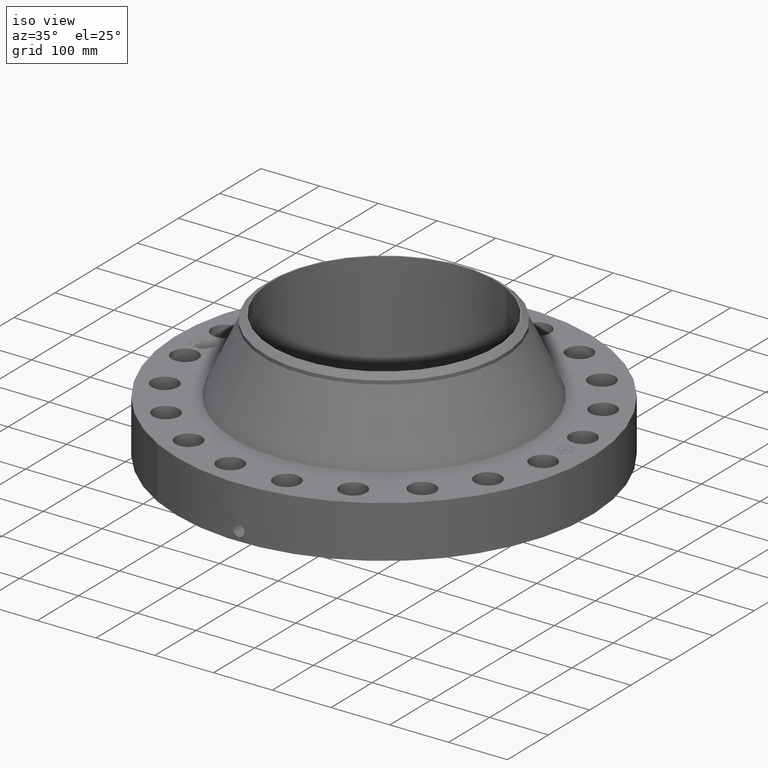
[diagram: clean part render]
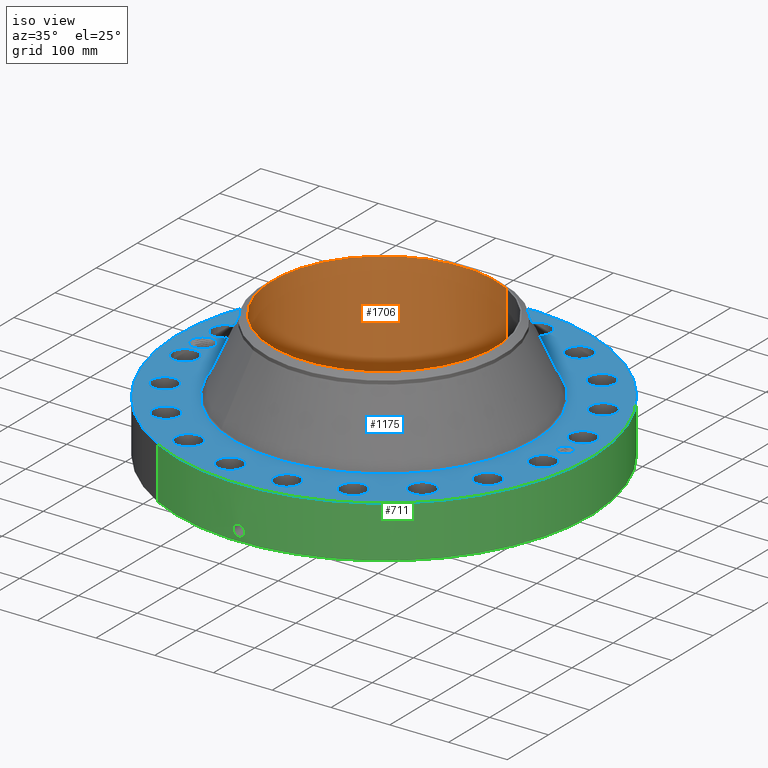
[diagram: same view with three faces highlighted in distinct colors, each labeled with its STEP entity id]
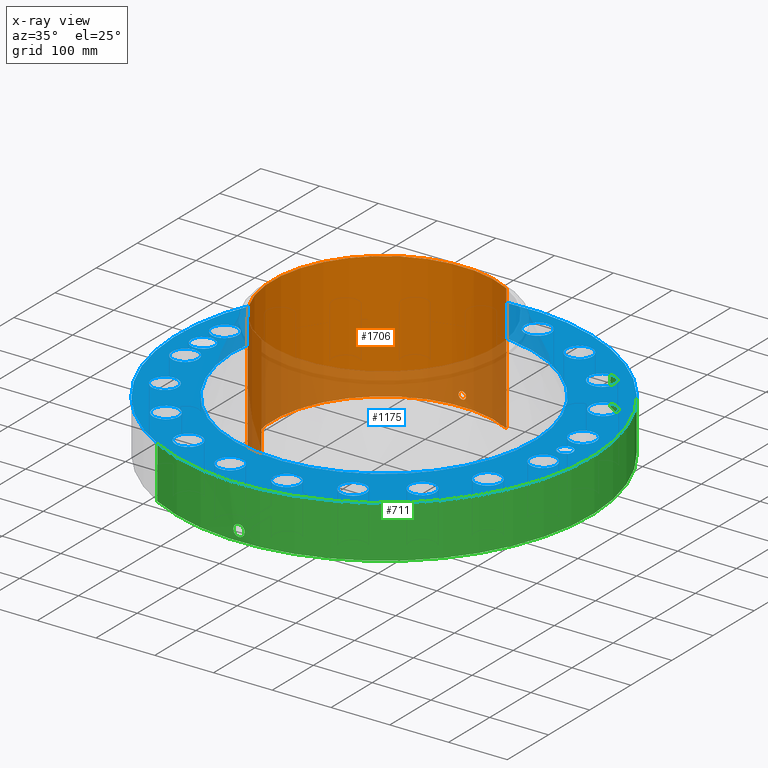
[diagram: x-ray of the same camera — body ghosted, the three highlighted faces saturated]
A machine part, iso view with three faces highlighted in distinct colors.
The next image is the same camera in x-ray (body ghosted, the three faces saturated) — at least one of them is partly hidden behind the body in this view.
Their STEP definitions:

[orange] entity #1706 — the highlighted cylindrical surface (partial cylindrical patch) has radius 190.5 mm, axis along (0, 0, -1).
#263=AXIS2_PLACEMENT_3D('Circle Axis2P3D',#261,#262,$) ;
#1583=AXIS2_PLACEMENT_3D('Cylinder Axis2P3D',#1580,#1581,#1582) ;
#1655=AXIS2_PLACEMENT_3D('Circle Axis2P3D',#1653,#1654,$) ;
#256=CARTESIAN_POINT('Vertex',(3.59569153955,6.5818692142,0.250000000001)) ;
#258=CARTESIAN_POINT('Vertex',(-3.59569153955,-6.5818692142,0.250000000001)) ;
#261=CARTESIAN_POINT('Axis2P3D Location',(0.,0.,0.250000000001)) ;
#1580=CARTESIAN_POINT('Axis2P3D Location',(0.,0.,4.50000000002)) ;
#1589=CARTESIAN_POINT('Vertex',(3.59569153955,6.5818692142,8.75000000003)) ;
#1591=CARTESIAN_POINT('Vertex',(-3.59569153955,-6.5818692142,8.75000000003)) ;
#1594=CARTESIAN_POINT('Line Origine',(3.59569153955,6.5818692142,4.50000000002)) ;
#1599=CARTESIAN_POINT('Line Origine',(-3.59569153955,-6.5818692142,4.50000000002)) ;
#1653=CARTESIAN_POINT('Axis2P3D Location',(0.,0.,8.75000000003)) ;
#1665=CARTESIAN_POINT('Control Point',(0.219395640473,7.4967903501,1.05985638466)) ;
#1666=CARTESIAN_POINT('Control Point',(0.194443383035,7.49752058481,1.10553118553)) ;
#1667=CARTESIAN_POINT('Control Point',(0.157606812849,7.49849471468,1.14470957149)) ;
#1668=CARTESIAN_POINT('Control Point',(0.111111986693,7.49944203012,1.17324142145)) ;
#1669=CARTESIAN_POINT('Control Point',(0.0336784240063,7.50019577271,1.19588184676)) ;
#1670=CARTESIAN_POINT('Control Point',(-0.0446655199426,7.49993536621,1.18805713373)) ;
#1671=CARTESIAN_POINT('Control Point',(-0.0702937087636,7.4997332065,1.18204551062)) ;
#1672=CARTESIAN_POINT('Control Point',(-0.14394789502,7.49883979488,1.15421704476)) ;
#1673=CARTESIAN_POINT('Control Point',(-0.203234184576,7.49738136775,1.09950884539)) ;
#1674=CARTESIAN_POINT('Control Point',(-0.232201664804,7.49642464141,1.05327431005)) ;
#1675=CARTESIAN_POINT('Control Point',(-0.255839148874,7.49563793753,0.975125768919)) ;
#1676=CARTESIAN_POINT('Control Point',(-0.248285193674,7.49588914094,0.895756640073)) ;
#1677=CARTESIAN_POINT('Control Point',(-0.242051359797,7.49609946172,0.869190285342)) ;
#1678=CARTESIAN_POINT('Control Point',(-0.232316958258,7.49641220417,0.843795928905)) ;
#1679=CARTESIAN_POINT('Control Point',(-0.219395640473,7.4967903501,0.820143615352)) ;
#1680=CARTESIAN_POINT('Vertex',(0.219395640473,7.4967903501,1.05985638466)) ;
#1682=CARTESIAN_POINT('Vertex',(-0.219395640473,7.4967903501,0.820143615352)) ;
#1686=CARTESIAN_POINT('Control Point',(-0.219395640473,7.4967903501,0.820143615352)) ;
#1687=CARTESIAN_POINT('Control Point',(-0.194443383052,7.49752058481,0.774468814513)) ;
#1688=CARTESIAN_POINT('Control Point',(-0.157606812898,7.49849471468,0.735290428574)) ;
#1689=CARTESIAN_POINT('Control Point',(-0.111111986624,7.49944203012,0.706758578535)) ;
#1690=CARTESIAN_POINT('Control Point',(-0.0336784239995,7.50019577271,0.684118153255)) ;
#1691=CARTESIAN_POINT('Control Point',(0.0446655198863,7.49993536621,0.691942866271)) ;
#1692=CARTESIAN_POINT('Control Point',(0.0702937088163,7.4997332065,0.697954489405)) ;
#1693=CARTESIAN_POINT('Control Point',(0.143947895041,7.49883979488,0.725782955265)) ;
#1694=CARTESIAN_POINT('Control Point',(0.203234184575,7.49738136775,0.780491154621)) ;
#1695=CARTESIAN_POINT('Control Point',(0.232201664804,7.49642464141,0.826725689962)) ;
#1696=CARTESIAN_POINT('Control Point',(0.255839148855,7.49563793753,0.904874231026)) ;
#1697=CARTESIAN_POINT('Control Point',(0.248285193686,7.49588914094,0.984243359806)) ;
#1698=CARTESIAN_POINT('Control Point',(0.242051359751,7.49609946172,1.01080971479)) ;
#1699=CARTESIAN_POINT('Control Point',(0.232316958227,7.49641220417,1.03620407116)) ;
#1700=CARTESIAN_POINT('Control Point',(0.219395640473,7.4967903501,1.05985638466)) ;
#262=DIRECTION('Axis2P3D Direction',(0.,0.,-0.0393700787402)) ;
#1581=DIRECTION('Axis2P3D Direction',(0.,0.,-0.0393700787402)) ;
#1582=DIRECTION('Axis2P3D XDirection',(-0.0188750212049,-0.0345504945626,0.)) ;
#1595=DIRECTION('Vector Direction',(0.,0.,-0.0393700787402)) ;
#1600=DIRECTION('Vector Direction',(0.,0.,-0.0393700787402)) ;
#1654=DIRECTION('Axis2P3D Direction',(0.,0.,-0.0393700787402)) ;
#1596=VECTOR('Line Direction',#1595,0.0393700787402) ;
#1601=VECTOR('Line Direction',#1600,0.0393700787402) ;
#1659=ORIENTED_EDGE('',*,*,#1657,.F.) ;
#1660=ORIENTED_EDGE('',*,*,#1603,.T.) ;
#1661=ORIENTED_EDGE('',*,*,#265,.T.) ;
#1662=ORIENTED_EDGE('',*,*,#1598,.F.) ;
#1703=ORIENTED_EDGE('',*,*,#1684,.F.) ;
#1704=ORIENTED_EDGE('',*,*,#1701,.F.) ;
#1705=FACE_BOUND('',#1702,.T.) ;
#1706=ADVANCED_FACE('PartBody',(#1663,#1705),#1584,.F.) ;
#1664=B_SPLINE_CURVE_WITH_KNOTS('',5,(#1665,#1666,#1667,#1668,#1669,#1670,#1671,#1672,#1673,#1674,#1675,#1676,#1677,#1678,#1679),.UNSPECIFIED.,.F.,.U.,(6,3,3,3,6),(0.,9.34867665263,14.0227250561,23.3727520164,28.2138860176),.UNSPECIFIED.) ;
#1685=B_SPLINE_CURVE_WITH_KNOTS('',5,(#1686,#1687,#1688,#1689,#1690,#1691,#1692,#1693,#1694,#1695,#1696,#1697,#1698,#1699,#1700),.UNSPECIFIED.,.F.,.U.,(6,3,3,3,6),(0.,9.34867664638,14.0227250449,23.372752005,28.2138859948),.UNSPECIFIED.) ;
#264=CIRCLE('generated circle',#263,7.50000000003) ;
#1656=CIRCLE('generated circle',#1655,7.50000000003) ;
#1584=CYLINDRICAL_SURFACE('generated cylinder',#1583,7.50000000003) ;
#265=EDGE_CURVE('',#259,#257,#264,.T.) ;
#1598=EDGE_CURVE('',#1590,#257,#1597,.T.) ;
#1603=EDGE_CURVE('',#1592,#259,#1602,.T.) ;
#1657=EDGE_CURVE('',#1592,#1590,#1656,.T.) ;
#1684=EDGE_CURVE('',#1681,#1683,#1664,.T.) ;
#1701=EDGE_CURVE('',#1683,#1681,#1685,.T.) ;
#1658=EDGE_LOOP('',(#1659,#1660,#1661,#1662)) ;
#1702=EDGE_LOOP('',(#1703,#1704)) ;
#1663=FACE_OUTER_BOUND('',#1658,.T.) ;
#1597=LINE('Line',#1594,#1596) ;
#1602=LINE('Line',#1599,#1601) ;
#257=VERTEX_POINT('',#256) ;
#259=VERTEX_POINT('',#258) ;
#1590=VERTEX_POINT('',#1589) ;
#1592=VERTEX_POINT('',#1591) ;
#1681=VERTEX_POINT('',#1680) ;
#1683=VERTEX_POINT('',#1682) ;

[blue] entity #1175 — the highlighted planar face has unit normal (0, 0, -1).
#58=AXIS2_PLACEMENT_3D('Circle Axis2P3D',#56,#57,$) ;
#615=AXIS2_PLACEMENT_3D('Circle Axis2P3D',#613,#614,$) ;
#715=AXIS2_PLACEMENT_3D('Plane Axis2P3D',#712,#713,#714) ;
#763=AXIS2_PLACEMENT_3D('Circle Axis2P3D',#761,#762,$) ;
#770=AXIS2_PLACEMENT_3D('Circle Axis2P3D',#768,#769,$) ;
#781=AXIS2_PLACEMENT_3D('Circle Axis2P3D',#779,#780,$) ;
#790=AXIS2_PLACEMENT_3D('Circle Axis2P3D',#788,#789,$) ;
#799=AXIS2_PLACEMENT_3D('Circle Axis2P3D',#797,#798,$) ;
#808=AXIS2_PLACEMENT_3D('Circle Axis2P3D',#806,#807,$) ;
#817=AXIS2_PLACEMENT_3D('Circle Axis2P3D',#815,#816,$) ;
#826=AXIS2_PLACEMENT_3D('Circle Axis2P3D',#824,#825,$) ;
#835=AXIS2_PLACEMENT_3D('Circle Axis2P3D',#833,#834,$) ;
#844=AXIS2_PLACEMENT_3D('Circle Axis2P3D',#842,#843,$) ;
#853=AXIS2_PLACEMENT_3D('Circle Axis2P3D',#851,#852,$) ;
#862=AXIS2_PLACEMENT_3D('Circle Axis2P3D',#860,#861,$) ;
#871=AXIS2_PLACEMENT_3D('Circle Axis2P3D',#869,#870,$) ;
#880=AXIS2_PLACEMENT_3D('Circle Axis2P3D',#878,#879,$) ;
#889=AXIS2_PLACEMENT_3D('Circle Axis2P3D',#887,#888,$) ;
#898=AXIS2_PLACEMENT_3D('Circle Axis2P3D',#896,#897,$) ;
#907=AXIS2_PLACEMENT_3D('Circle Axis2P3D',#905,#906,$) ;
#916=AXIS2_PLACEMENT_3D('Circle Axis2P3D',#914,#915,$) ;
#925=AXIS2_PLACEMENT_3D('Circle Axis2P3D',#923,#924,$) ;
#934=AXIS2_PLACEMENT_3D('Circle Axis2P3D',#932,#933,$) ;
#943=AXIS2_PLACEMENT_3D('Circle Axis2P3D',#941,#942,$) ;
#952=AXIS2_PLACEMENT_3D('Circle Axis2P3D',#950,#951,$) ;
#961=AXIS2_PLACEMENT_3D('Circle Axis2P3D',#959,#960,$) ;
#970=AXIS2_PLACEMENT_3D('Circle Axis2P3D',#968,#969,$) ;
#979=AXIS2_PLACEMENT_3D('Circle Axis2P3D',#977,#978,$) ;
#988=AXIS2_PLACEMENT_3D('Circle Axis2P3D',#986,#987,$) ;
#997=AXIS2_PLACEMENT_3D('Circle Axis2P3D',#995,#996,$) ;
#1006=AXIS2_PLACEMENT_3D('Circle Axis2P3D',#1004,#1005,$) ;
#1015=AXIS2_PLACEMENT_3D('Circle Axis2P3D',#1013,#1014,$) ;
#1024=AXIS2_PLACEMENT_3D('Circle Axis2P3D',#1022,#1023,$) ;
#1033=AXIS2_PLACEMENT_3D('Circle Axis2P3D',#1031,#1032,$) ;
#1042=AXIS2_PLACEMENT_3D('Circle Axis2P3D',#1040,#1041,$) ;
#1051=AXIS2_PLACEMENT_3D('Circle Axis2P3D',#1049,#1050,$) ;
#1060=AXIS2_PLACEMENT_3D('Circle Axis2P3D',#1058,#1059,$) ;
#1069=AXIS2_PLACEMENT_3D('Circle Axis2P3D',#1067,#1068,$) ;
#1078=AXIS2_PLACEMENT_3D('Circle Axis2P3D',#1076,#1077,$) ;
#1087=AXIS2_PLACEMENT_3D('Circle Axis2P3D',#1085,#1086,$) ;
#1096=AXIS2_PLACEMENT_3D('Circle Axis2P3D',#1094,#1095,$) ;
#1105=AXIS2_PLACEMENT_3D('Circle Axis2P3D',#1103,#1104,$) ;
#1114=AXIS2_PLACEMENT_3D('Circle Axis2P3D',#1112,#1113,$) ;
#1123=AXIS2_PLACEMENT_3D('Circle Axis2P3D',#1121,#1122,$) ;
#1132=AXIS2_PLACEMENT_3D('Circle Axis2P3D',#1130,#1131,$) ;
#1141=AXIS2_PLACEMENT_3D('Circle Axis2P3D',#1139,#1140,$) ;
#1150=AXIS2_PLACEMENT_3D('Circle Axis2P3D',#1148,#1149,$) ;
#1159=AXIS2_PLACEMENT_3D('Circle Axis2P3D',#1157,#1158,$) ;
#1168=AXIS2_PLACEMENT_3D('Circle Axis2P3D',#1166,#1167,$) ;
#53=CARTESIAN_POINT('Vertex',(-6.65202934816,-12.1764580463,3.75000000002)) ;
#56=CARTESIAN_POINT('Axis2P3D Location',(0.,0.,3.75000000002)) ;
#60=CARTESIAN_POINT('Vertex',(6.65202934816,12.1764580463,3.75000000002)) ;
#613=CARTESIAN_POINT('Axis2P3D Location',(0.,0.,3.75000000002)) ;
#712=CARTESIAN_POINT('Axis2P3D Location',(0.,13.8750000001,3.75000000002)) ;
#722=CARTESIAN_POINT('Control Point',(-11.3375,0.,3.75000000002)) ;
#723=CARTESIAN_POINT('Control Point',(-11.3405027023,0.0700643832565,3.75000000002)) ;
#724=CARTESIAN_POINT('Control Point',(-11.3510650895,0.139653946033,3.75000000002)) ;
#725=CARTESIAN_POINT('Control Point',(-11.369122147,0.207669717136,3.75000000002)) ;
#726=CARTESIAN_POINT('Control Point',(-11.4195963247,0.338375407787,3.75000000002)) ;
#727=CARTESIAN_POINT('Control Point',(-11.4966936763,0.454596690146,3.75000000002)) ;
#728=CARTESIAN_POINT('Control Point',(-11.5413729178,0.508119662912,3.75000000002)) ;
#729=CARTESIAN_POINT('Control Point',(-11.6248060672,0.588234376637,3.75000000002)) ;
#730=CARTESIAN_POINT('Control Point',(-11.7207317602,0.651398199618,3.75000000002)) ;
#731=CARTESIAN_POINT('Control Point',(-11.7608247602,0.673749782645,3.75000000002)) ;
#732=CARTESIAN_POINT('Control Point',(-11.8334162693,0.70745942835,3.75000000002)) ;
#733=CARTESIAN_POINT('Control Point',(-11.9094371903,0.731460647195,3.75000000002)) ;
#734=CARTESIAN_POINT('Control Point',(-11.9424616429,0.739905653124,3.75000000002)) ;
#735=CARTESIAN_POINT('Control Point',(-11.9758392826,0.74649434681,3.75000000002)) ;
#736=CARTESIAN_POINT('Control Point',(-12.0094305481,0.751211216432,3.75000000002)) ;
#737=CARTESIAN_POINT('Vertex',(-11.3375,0.,3.75000000002)) ;
#739=CARTESIAN_POINT('Vertex',(-12.0094305481,0.751211216432,3.75000000002)) ;
#743=CARTESIAN_POINT('Control Point',(-11.3375,0.,3.75000000002)) ;
#744=CARTESIAN_POINT('Control Point',(-11.3405034535,-0.070081912488,3.75000000002)) ;
#745=CARTESIAN_POINT('Control Point',(-11.351070404,-0.139688762291,3.75000000002)) ;
#746=CARTESIAN_POINT('Control Point',(-11.3691263122,-0.207700041187,3.75000000002)) ;
#747=CARTESIAN_POINT('Control Point',(-11.4196047709,-0.338419134192,3.75000000002)) ;
#748=CARTESIAN_POINT('Control Point',(-11.4966629022,-0.454573221139,3.75000000002)) ;
#749=CARTESIAN_POINT('Control Point',(-11.5413277057,-0.508069838376,3.75000000002)) ;
#750=CARTESIAN_POINT('Control Point',(-11.6414181376,-0.604187153789,3.75000000002)) ;
#751=CARTESIAN_POINT('Control Point',(-11.7594367136,-0.675897182128,3.75000000002)) ;
#752=CARTESIAN_POINT('Control Point',(-11.8220591839,-0.705005537081,3.75000000002)) ;
#753=CARTESIAN_POINT('Control Point',(-11.8980972948,-0.730534631274,3.75000000002)) ;
#754=CARTESIAN_POINT('Control Point',(-11.9761240393,-0.745926297884,3.75000000002)) ;
#755=CARTESIAN_POINT('Control Point',(-11.9873049568,-0.747916973555,3.75000000002)) ;
#756=CARTESIAN_POINT('Control Point',(-11.9985162605,-0.749698910056,3.75000000002)) ;
#757=CARTESIAN_POINT('Control Point',(-12.0097527931,-0.751271444581,3.75000000002)) ;
#758=CARTESIAN_POINT('Vertex',(-12.0097527931,-0.751271444581,3.75000000002)) ;
#761=CARTESIAN_POINT('Axis2P3D Location',(-12.15,4.47585975282E-015,3.75000000002)) ;
#765=CARTESIAN_POINT('Vertex',(-12.820692473,0.36640096788,3.75000000002)) ;
#768=CARTESIAN_POINT('Axis2P3D Location',(-12.15,4.47585975282E-015,3.75000000002)) ;
#779=CARTESIAN_POINT('Axis2P3D Location',(12.0004133383,-1.90067875025,3.75000000002)) ;
#783=CARTESIAN_POINT('Vertex',(11.2325285966,-1.48118140397,3.75000000002)) ;
#785=CARTESIAN_POINT('Vertex',(12.7682980799,-2.32017609653,3.75000000002)) ;
#788=CARTESIAN_POINT('Axis2P3D Location',(12.0004133383,-1.90067875025,3.75000000002)) ;
#797=CARTESIAN_POINT('Axis2P3D Location',(0.,0.,3.75000000002)) ;
#801=CARTESIAN_POINT('Vertex',(-4.83144071031,-8.84389289841,3.75000000002)) ;
#803=CARTESIAN_POINT('Vertex',(4.83144071031,8.84389289841,3.75000000002)) ;
#806=CARTESIAN_POINT('Axis2P3D Location',(0.,0.,3.75000000002)) ;
#815=CARTESIAN_POINT('Axis2P3D Location',(10.8257292689,-5.51598457186,3.75000000002)) ;
#819=CARTESIAN_POINT('Vertex',(11.4263992472,-6.1522396915,3.75000000002)) ;
#821=CARTESIAN_POINT('Vertex',(10.2250592907,-4.87972945222,3.75000000002)) ;
#824=CARTESIAN_POINT('Axis2P3D Location',(10.8257292689,-5.51598457186,3.75000000002)) ;
#833=CARTESIAN_POINT('Axis2P3D Location',(8.59134739145,-8.59134739145,3.75000000002)) ;
#837=CARTESIAN_POINT('Vertex',(8.96600484365,-9.38207920029,3.75000000002)) ;
#839=CARTESIAN_POINT('Vertex',(8.21668993925,-7.80061558261,3.75000000002)) ;
#842=CARTESIAN_POINT('Axis2P3D Location',(8.59134739145,-8.59134739145,3.75000000002)) ;
#851=CARTESIAN_POINT('Axis2P3D Location',(5.51598457186,-10.8257292689,3.75000000002)) ;
#855=CARTESIAN_POINT('Vertex',(5.62795541623,-11.6935354282,3.75000000002)) ;
#857=CARTESIAN_POINT('Vertex',(5.40401372749,-9.95792310969,3.75000000002)) ;
#860=CARTESIAN_POINT('Axis2P3D Location',(5.51598457186,-10.8257292689,3.75000000002)) ;
#869=CARTESIAN_POINT('Axis2P3D Location',(1.90067875025,-12.0004133383,3.75000000002)) ;
#873=CARTESIAN_POINT('Vertex',(1.73900250039,-12.8603469347,3.75000000002)) ;
#875=CARTESIAN_POINT('Vertex',(2.0623550001,-11.1404797419,3.75000000002)) ;
#878=CARTESIAN_POINT('Axis2P3D Location',(1.90067875025,-12.0004133383,3.75000000002)) ;
#887=CARTESIAN_POINT('Axis2P3D Location',(-1.90067875025,-12.0004133383,3.75000000002)) ;
#891=CARTESIAN_POINT('Vertex',(-2.32017609653,-12.7682980799,3.75000000002)) ;
#893=CARTESIAN_POINT('Vertex',(-1.48118140397,-11.2325285966,3.75000000002)) ;
#896=CARTESIAN_POINT('Axis2P3D Location',(-1.90067875025,-12.0004133383,3.75000000002)) ;
#905=CARTESIAN_POINT('Axis2P3D Location',(-5.51598457186,-10.8257292689,3.75000000002)) ;
#909=CARTESIAN_POINT('Vertex',(-6.1522396915,-11.4263992472,3.75000000002)) ;
#911=CARTESIAN_POINT('Vertex',(-4.87972945222,-10.2250592907,3.75000000002)) ;
#914=CARTESIAN_POINT('Axis2P3D Location',(-5.51598457186,-10.8257292689,3.75000000002)) ;
#923=CARTESIAN_POINT('Axis2P3D Location',(-8.59134739145,-8.59134739145,3.75000000002)) ;
#927=CARTESIAN_POINT('Vertex',(-9.38207920029,-8.96600484365,3.75000000002)) ;
#929=CARTESIAN_POINT('Vertex',(-7.80061558261,-8.21668993925,3.75000000002)) ;
#932=CARTESIAN_POINT('Axis2P3D Location',(-8.59134739145,-8.59134739145,3.75000000002)) ;
#941=CARTESIAN_POINT('Axis2P3D Location',(-10.8257292689,-5.51598457186,3.75000000002)) ;
#945=CARTESIAN_POINT('Vertex',(-11.6935354282,-5.62795541623,3.75000000002)) ;
#947=CARTESIAN_POINT('Vertex',(-9.95792310969,-5.40401372749,3.75000000002)) ;
#950=CARTESIAN_POINT('Axis2P3D Location',(-10.8257292689,-5.51598457186,3.75000000002)) ;
#959=CARTESIAN_POINT('Axis2P3D Location',(-12.0004133383,-1.90067875025,3.75000000002)) ;
#963=CARTESIAN_POINT('Vertex',(-12.8603469347,-1.73900250039,3.75000000002)) ;
#965=CARTESIAN_POINT('Vertex',(-11.1404797419,-2.0623550001,3.75000000002)) ;
#968=CARTESIAN_POINT('Axis2P3D Location',(-12.0004133383,-1.90067875025,3.75000000002)) ;
#977=CARTESIAN_POINT('Axis2P3D Location',(-12.0004133383,1.90067875025,3.75000000002)) ;
#981=CARTESIAN_POINT('Vertex',(-12.7682980799,2.32017609653,3.75000000002)) ;
#983=CARTESIAN_POINT('Vertex',(-11.2325285966,1.48118140397,3.75000000002)) ;
#986=CARTESIAN_POINT('Axis2P3D Location',(-12.0004133383,1.90067875025,3.75000000002)) ;
#995=CARTESIAN_POINT('Axis2P3D Location',(-10.8257292689,5.51598457186,3.75000000002)) ;
#999=CARTESIAN_POINT('Vertex',(-11.4263992472,6.1522396915,3.75000000002)) ;
#1001=CARTESIAN_POINT('Vertex',(-10.2250592907,4.87972945222,3.75000000002)) ;
#1004=CARTESIAN_POINT('Axis2P3D Location',(-10.8257292689,5.51598457186,3.75000000002)) ;
#1013=CARTESIAN_POINT('Axis2P3D Location',(-8.59134739145,8.59134739145,3.75000000002)) ;
#1017=CARTESIAN_POINT('Vertex',(-8.96600484365,9.38207920029,3.75000000002)) ;
#1019=CARTESIAN_POINT('Vertex',(-8.21668993925,7.80061558261,3.75000000002)) ;
#1022=CARTESIAN_POINT('Axis2P3D Location',(-8.59134739145,8.59134739145,3.75000000002)) ;
#1031=CARTESIAN_POINT('Axis2P3D Location',(-5.51598457186,10.8257292689,3.75000000002)) ;
#1035=CARTESIAN_POINT('Vertex',(-5.62795541623,11.6935354282,3.75000000002)) ;
#1037=CARTESIAN_POINT('Vertex',(-5.40401372749,9.95792310969,3.75000000002)) ;
#1040=CARTESIAN_POINT('Axis2P3D Location',(-5.51598457186,10.8257292689,3.75000000002)) ;
#1049=CARTESIAN_POINT('Axis2P3D Location',(-1.90067875025,12.0004133383,3.75000000002)) ;
#1053=CARTESIAN_POINT('Vertex',(-1.73900250039,12.8603469347,3.75000000002)) ;
#1055=CARTESIAN_POINT('Vertex',(-2.0623550001,11.1404797419,3.75000000002)) ;
#1058=CARTESIAN_POINT('Axis2P3D Location',(-1.90067875025,12.0004133383,3.75000000002)) ;
#1067=CARTESIAN_POINT('Axis2P3D Location',(1.90067875025,12.0004133383,3.75000000002)) ;
#1071=CARTESIAN_POINT('Vertex',(2.32017609653,12.7682980799,3.75000000002)) ;
#1073=CARTESIAN_POINT('Vertex',(1.48118140397,11.2325285966,3.75000000002)) ;
#1076=CARTESIAN_POINT('Axis2P3D Location',(1.90067875025,12.0004133383,3.75000000002)) ;
#1085=CARTESIAN_POINT('Axis2P3D Location',(5.51598457186,10.8257292689,3.75000000002)) ;
#1089=CARTESIAN_POINT('Vertex',(6.1522396915,11.4263992472,3.75000000002)) ;
#1091=CARTESIAN_POINT('Vertex',(4.87972945222,10.2250592907,3.75000000002)) ;
#1094=CARTESIAN_POINT('Axis2P3D Location',(5.51598457186,10.8257292689,3.75000000002)) ;
#1103=CARTESIAN_POINT('Axis2P3D Location',(8.59134739145,8.59134739145,3.75000000002)) ;
#1107=CARTESIAN_POINT('Vertex',(9.38207920029,8.96600484365,3.75000000002)) ;
#1109=CARTESIAN_POINT('Vertex',(7.80061558261,8.21668993925,3.75000000002)) ;
#1112=CARTESIAN_POINT('Axis2P3D Location',(8.59134739145,8.59134739145,3.75000000002)) ;
#1121=CARTESIAN_POINT('Axis2P3D Location',(10.8257292689,5.51598457186,3.75000000002)) ;
#1125=CARTESIAN_POINT('Vertex',(11.6935354282,5.62795541623,3.75000000002)) ;
#1127=CARTESIAN_POINT('Vertex',(9.95792310969,5.40401372749,3.75000000002)) ;
#1130=CARTESIAN_POINT('Axis2P3D Location',(10.8257292689,5.51598457186,3.75000000002)) ;
#1139=CARTESIAN_POINT('Axis2P3D Location',(12.0004133383,1.90067875025,3.75000000002)) ;
#1143=CARTESIAN_POINT('Vertex',(12.8603469347,1.73900250039,3.75000000002)) ;
#1145=CARTESIAN_POINT('Vertex',(11.1404797419,2.0623550001,3.75000000002)) ;
#1148=CARTESIAN_POINT('Axis2P3D Location',(12.0004133383,1.90067875025,3.75000000002)) ;
#1157=CARTESIAN_POINT('Axis2P3D Location',(12.15,-1.09658563944E-013,3.75000000002)) ;
#1161=CARTESIAN_POINT('Vertex',(12.15,0.499999995002,3.75000000002)) ;
#1163=CARTESIAN_POINT('Vertex',(12.15,-0.499999995002,3.75000000002)) ;
#1166=CARTESIAN_POINT('Axis2P3D Location',(12.15,-1.09658563944E-013,3.75000000002)) ;
#57=DIRECTION('Axis2P3D Direction',(0.,0.,-0.0393700787402)) ;
#614=DIRECTION('Axis2P3D Direction',(0.,0.,-0.0393700787402)) ;
#713=DIRECTION('Axis2P3D Direction',(0.,0.,-0.0393700787402)) ;
#714=DIRECTION('Axis2P3D XDirection',(0.0393700787402,0.,0.)) ;
#762=DIRECTION('Axis2P3D Direction',(0.,0.,-0.0393700787402)) ;
#769=DIRECTION('Axis2P3D Direction',(0.,0.,-0.0393700787402)) ;
#780=DIRECTION('Axis2P3D Direction',(0.,0.,-0.0393700787402)) ;
#789=DIRECTION('Axis2P3D Direction',(0.,0.,-0.0393700787402)) ;
#798=DIRECTION('Axis2P3D Direction',(0.,0.,-0.0393700787402)) ;
#807=DIRECTION('Axis2P3D Direction',(0.,0.,-0.0393700787402)) ;
#816=DIRECTION('Axis2P3D Direction',(0.,0.,-0.0393700787402)) ;
#825=DIRECTION('Axis2P3D Direction',(0.,0.,-0.0393700787402)) ;
#834=DIRECTION('Axis2P3D Direction',(0.,0.,-0.0393700787402)) ;
#843=DIRECTION('Axis2P3D Direction',(0.,0.,-0.0393700787402)) ;
#852=DIRECTION('Axis2P3D Direction',(0.,0.,-0.0393700787402)) ;
#861=DIRECTION('Axis2P3D Direction',(0.,0.,-0.0393700787402)) ;
#870=DIRECTION('Axis2P3D Direction',(0.,0.,-0.0393700787402)) ;
#879=DIRECTION('Axis2P3D Direction',(0.,0.,-0.0393700787402)) ;
#888=DIRECTION('Axis2P3D Direction',(0.,0.,-0.0393700787402)) ;
#897=DIRECTION('Axis2P3D Direction',(0.,0.,-0.0393700787402)) ;
#906=DIRECTION('Axis2P3D Direction',(0.,0.,-0.0393700787402)) ;
#915=DIRECTION('Axis2P3D Direction',(0.,0.,-0.0393700787402)) ;
#924=DIRECTION('Axis2P3D Direction',(0.,0.,-0.0393700787402)) ;
#933=DIRECTION('Axis2P3D Direction',(0.,0.,-0.0393700787402)) ;
#942=DIRECTION('Axis2P3D Direction',(0.,0.,-0.0393700787402)) ;
#951=DIRECTION('Axis2P3D Direction',(0.,0.,-0.0393700787402)) ;
#960=DIRECTION('Axis2P3D Direction',(0.,0.,-0.0393700787402)) ;
#969=DIRECTION('Axis2P3D Direction',(0.,0.,-0.0393700787402)) ;
#978=DIRECTION('Axis2P3D Direction',(0.,0.,-0.0393700787402)) ;
#987=DIRECTION('Axis2P3D Direction',(0.,0.,-0.0393700787402)) ;
#996=DIRECTION('Axis2P3D Direction',(0.,0.,-0.0393700787402)) ;
#1005=DIRECTION('Axis2P3D Direction',(0.,0.,-0.0393700787402)) ;
#1014=DIRECTION('Axis2P3D Direction',(0.,0.,-0.0393700787402)) ;
#1023=DIRECTION('Axis2P3D Direction',(0.,0.,-0.0393700787402)) ;
#1032=DIRECTION('Axis2P3D Direction',(0.,0.,-0.0393700787402)) ;
#1041=DIRECTION('Axis2P3D Direction',(0.,0.,-0.0393700787402)) ;
#1050=DIRECTION('Axis2P3D Direction',(0.,0.,-0.0393700787402)) ;
#1059=DIRECTION('Axis2P3D Direction',(0.,0.,-0.0393700787402)) ;
#1068=DIRECTION('Axis2P3D Direction',(0.,0.,-0.0393700787402)) ;
#1077=DIRECTION('Axis2P3D Direction',(0.,0.,-0.0393700787402)) ;
#1086=DIRECTION('Axis2P3D Direction',(0.,0.,-0.0393700787402)) ;
#1095=DIRECTION('Axis2P3D Direction',(0.,0.,-0.0393700787402)) ;
#1104=DIRECTION('Axis2P3D Direction',(0.,0.,-0.0393700787402)) ;
#1113=DIRECTION('Axis2P3D Direction',(0.,0.,-0.0393700787402)) ;
#1122=DIRECTION('Axis2P3D Direction',(0.,0.,-0.0393700787402)) ;
#1131=DIRECTION('Axis2P3D Direction',(0.,0.,-0.0393700787402)) ;
#1140=DIRECTION('Axis2P3D Direction',(0.,0.,-0.0393700787402)) ;
#1149=DIRECTION('Axis2P3D Direction',(0.,0.,-0.0393700787402)) ;
#1158=DIRECTION('Axis2P3D Direction',(0.,0.,-0.0393700787402)) ;
#1167=DIRECTION('Axis2P3D Direction',(0.,0.,-0.0393700787402)) ;
#718=ORIENTED_EDGE('',*,*,#617,.F.) ;
#719=ORIENTED_EDGE('',*,*,#62,.F.) ;
#774=ORIENTED_EDGE('',*,*,#741,.F.) ;
#775=ORIENTED_EDGE('',*,*,#760,.T.) ;
#776=ORIENTED_EDGE('',*,*,#767,.T.) ;
#777=ORIENTED_EDGE('',*,*,#772,.T.) ;
#794=ORIENTED_EDGE('',*,*,#787,.T.) ;
#795=ORIENTED_EDGE('',*,*,#792,.T.) ;
#812=ORIENTED_EDGE('',*,*,#805,.T.) ;
#813=ORIENTED_EDGE('',*,*,#810,.T.) ;
#830=ORIENTED_EDGE('',*,*,#823,.T.) ;
#831=ORIENTED_EDGE('',*,*,#828,.T.) ;
#848=ORIENTED_EDGE('',*,*,#841,.T.) ;
#849=ORIENTED_EDGE('',*,*,#846,.T.) ;
#866=ORIENTED_EDGE('',*,*,#859,.T.) ;
#867=ORIENTED_EDGE('',*,*,#864,.T.) ;
#884=ORIENTED_EDGE('',*,*,#877,.T.) ;
#885=ORIENTED_EDGE('',*,*,#882,.T.) ;
#902=ORIENTED_EDGE('',*,*,#895,.T.) ;
#903=ORIENTED_EDGE('',*,*,#900,.T.) ;
#920=ORIENTED_EDGE('',*,*,#913,.T.) ;
#921=ORIENTED_EDGE('',*,*,#918,.T.) ;
#938=ORIENTED_EDGE('',*,*,#931,.T.) ;
#939=ORIENTED_EDGE('',*,*,#936,.T.) ;
#956=ORIENTED_EDGE('',*,*,#949,.T.) ;
#957=ORIENTED_EDGE('',*,*,#954,.T.) ;
#974=ORIENTED_EDGE('',*,*,#967,.T.) ;
#975=ORIENTED_EDGE('',*,*,#972,.T.) ;
#992=ORIENTED_EDGE('',*,*,#985,.T.) ;
#993=ORIENTED_EDGE('',*,*,#990,.T.) ;
#1010=ORIENTED_EDGE('',*,*,#1003,.T.) ;
#1011=ORIENTED_EDGE('',*,*,#1008,.T.) ;
#1028=ORIENTED_EDGE('',*,*,#1021,.T.) ;
#1029=ORIENTED_EDGE('',*,*,#1026,.T.) ;
#1046=ORIENTED_EDGE('',*,*,#1039,.T.) ;
#1047=ORIENTED_EDGE('',*,*,#1044,.T.) ;
#1064=ORIENTED_EDGE('',*,*,#1057,.T.) ;
#1065=ORIENTED_EDGE('',*,*,#1062,.T.) ;
#1082=ORIENTED_EDGE('',*,*,#1075,.T.) ;
#1083=ORIENTED_EDGE('',*,*,#1080,.T.) ;
#1100=ORIENTED_EDGE('',*,*,#1093,.T.) ;
#1101=ORIENTED_EDGE('',*,*,#1098,.T.) ;
#1118=ORIENTED_EDGE('',*,*,#1111,.T.) ;
#1119=ORIENTED_EDGE('',*,*,#1116,.T.) ;
#1136=ORIENTED_EDGE('',*,*,#1129,.T.) ;
#1137=ORIENTED_EDGE('',*,*,#1134,.T.) ;
#1154=ORIENTED_EDGE('',*,*,#1147,.T.) ;
#1155=ORIENTED_EDGE('',*,*,#1152,.T.) ;
#1172=ORIENTED_EDGE('',*,*,#1165,.T.) ;
#1173=ORIENTED_EDGE('',*,*,#1170,.T.) ;
#778=FACE_BOUND('',#773,.T.) ;
#796=FACE_BOUND('',#793,.T.) ;
#814=FACE_BOUND('',#811,.T.) ;
#832=FACE_BOUND('',#829,.T.) ;
#850=FACE_BOUND('',#847,.T.) ;
#868=FACE_BOUND('',#865,.T.) ;
#886=FACE_BOUND('',#883,.T.) ;
#904=FACE_BOUND('',#901,.T.) ;
#922=FACE_BOUND('',#919,.T.) ;
#940=FACE_BOUND('',#937,.T.) ;
#958=FACE_BOUND('',#955,.T.) ;
#976=FACE_BOUND('',#973,.T.) ;
#994=FACE_BOUND('',#991,.T.) ;
#1012=FACE_BOUND('',#1009,.T.) ;
#1030=FACE_BOUND('',#1027,.T.) ;
#1048=FACE_BOUND('',#1045,.T.) ;
#1066=FACE_BOUND('',#1063,.T.) ;
#1084=FACE_BOUND('',#1081,.T.) ;
#1102=FACE_BOUND('',#1099,.T.) ;
#1120=FACE_BOUND('',#1117,.T.) ;
#1138=FACE_BOUND('',#1135,.T.) ;
#1156=FACE_BOUND('',#1153,.T.) ;
#1174=FACE_BOUND('',#1171,.T.) ;
#1175=ADVANCED_FACE('PartBody',(#720,#778,#796,#814,#832,#850,#868,#886,#904,#922,#940,#958,#976,#994,#1012,#1030,#1048,#1066,#1084,#1102,#1120,#1138,#1156,#1174),#716,.F.) ;
#721=B_SPLINE_CURVE_WITH_KNOTS('',5,(#722,#723,#724,#725,#726,#727,#728,#729,#730,#731,#732,#733,#734,#735,#736),.UNSPECIFIED.,.F.,.U.,(6,3,3,3,6),(0.,12.1950234859,24.3883240874,32.5133175114,38.5898942463),.UNSPECIFIED.) ;
#742=B_SPLINE_CURVE_WITH_KNOTS('',5,(#743,#744,#745,#746,#747,#748,#749,#750,#751,#752,#753,#754,#755,#756,#757),.UNSPECIFIED.,.F.,.U.,(6,3,3,3,6),(0.,12.1980745282,24.4062843562,36.6208528856,38.6563444108),.UNSPECIFIED.) ;
#59=CIRCLE('generated circle',#58,13.8750000001) ;
#616=CIRCLE('generated circle',#615,13.8750000001) ;
#764=CIRCLE('generated circle',#763,0.764250000003) ;
#771=CIRCLE('generated circle',#770,0.764250000003) ;
#782=CIRCLE('generated circle',#781,0.875000000004) ;
#791=CIRCLE('generated circle',#790,0.875000000004) ;
#800=CIRCLE('generated circle',#799,10.0775622516) ;
#809=CIRCLE('generated circle',#808,10.0775622516) ;
#818=CIRCLE('generated circle',#817,0.875000000004) ;
#827=CIRCLE('generated circle',#826,0.875000000004) ;
#836=CIRCLE('generated circle',#835,0.875000000004) ;
#845=CIRCLE('generated circle',#844,0.875000000004) ;
#854=CIRCLE('generated circle',#853,0.875000000004) ;
#863=CIRCLE('generated circle',#862,0.875000000004) ;
#872=CIRCLE('generated circle',#871,0.875000000004) ;
#881=CIRCLE('generated circle',#880,0.875000000004) ;
#890=CIRCLE('generated circle',#889,0.875000000004) ;
#899=CIRCLE('generated circle',#898,0.875000000004) ;
#908=CIRCLE('generated circle',#907,0.875000000004) ;
#917=CIRCLE('generated circle',#916,0.875000000004) ;
#926=CIRCLE('generated circle',#925,0.875000000004) ;
#935=CIRCLE('generated circle',#934,0.875000000004) ;
#944=CIRCLE('generated circle',#943,0.875000000004) ;
#953=CIRCLE('generated circle',#952,0.875000000004) ;
#962=CIRCLE('generated circle',#961,0.875000000004) ;
#971=CIRCLE('generated circle',#970,0.875000000004) ;
#980=CIRCLE('generated circle',#979,0.875000000004) ;
#989=CIRCLE('generated circle',#988,0.875000000004) ;
#998=CIRCLE('generated circle',#997,0.875000000004) ;
#1007=CIRCLE('generated circle',#1006,0.875000000004) ;
#1016=CIRCLE('generated circle',#1015,0.875000000004) ;
#1025=CIRCLE('generated circle',#1024,0.875000000004) ;
#1034=CIRCLE('generated circle',#1033,0.875000000003) ;
#1043=CIRCLE('generated circle',#1042,0.875000000003) ;
#1052=CIRCLE('generated circle',#1051,0.875000000004) ;
#1061=CIRCLE('generated circle',#1060,0.875000000004) ;
#1070=CIRCLE('generated circle',#1069,0.875000000004) ;
#1079=CIRCLE('generated circle',#1078,0.875000000004) ;
#1088=CIRCLE('generated circle',#1087,0.875000000004) ;
#1097=CIRCLE('generated circle',#1096,0.875000000004) ;
#1106=CIRCLE('generated circle',#1105,0.875000000004) ;
#1115=CIRCLE('generated circle',#1114,0.875000000004) ;
#1124=CIRCLE('generated circle',#1123,0.875000000003) ;
#1133=CIRCLE('generated circle',#1132,0.875000000003) ;
#1142=CIRCLE('generated circle',#1141,0.875000000004) ;
#1151=CIRCLE('generated circle',#1150,0.875000000004) ;
#1160=CIRCLE('generated circle',#1159,0.499999995002) ;
#1169=CIRCLE('generated circle',#1168,0.499999995002) ;
#62=EDGE_CURVE('',#54,#61,#59,.T.) ;
#617=EDGE_CURVE('',#61,#54,#616,.T.) ;
#741=EDGE_CURVE('',#738,#740,#721,.T.) ;
#760=EDGE_CURVE('',#738,#759,#742,.T.) ;
#767=EDGE_CURVE('',#759,#766,#764,.T.) ;
#772=EDGE_CURVE('',#766,#740,#771,.T.) ;
#787=EDGE_CURVE('',#784,#786,#782,.T.) ;
#792=EDGE_CURVE('',#786,#784,#791,.T.) ;
#805=EDGE_CURVE('',#802,#804,#800,.T.) ;
#810=EDGE_CURVE('',#804,#802,#809,.T.) ;
#823=EDGE_CURVE('',#820,#822,#818,.T.) ;
#828=EDGE_CURVE('',#822,#820,#827,.T.) ;
#841=EDGE_CURVE('',#838,#840,#836,.T.) ;
#846=EDGE_CURVE('',#840,#838,#845,.T.) ;
#859=EDGE_CURVE('',#856,#858,#854,.T.) ;
#864=EDGE_CURVE('',#858,#856,#863,.T.) ;
#877=EDGE_CURVE('',#874,#876,#872,.T.) ;
#882=EDGE_CURVE('',#876,#874,#881,.T.) ;
#895=EDGE_CURVE('',#892,#894,#890,.T.) ;
#900=EDGE_CURVE('',#894,#892,#899,.T.) ;
#913=EDGE_CURVE('',#910,#912,#908,.T.) ;
#918=EDGE_CURVE('',#912,#910,#917,.T.) ;
#931=EDGE_CURVE('',#928,#930,#926,.T.) ;
#936=EDGE_CURVE('',#930,#928,#935,.T.) ;
#949=EDGE_CURVE('',#946,#948,#944,.T.) ;
#954=EDGE_CURVE('',#948,#946,#953,.T.) ;
#967=EDGE_CURVE('',#964,#966,#962,.T.) ;
#972=EDGE_CURVE('',#966,#964,#971,.T.) ;
#985=EDGE_CURVE('',#982,#984,#980,.T.) ;
#990=EDGE_CURVE('',#984,#982,#989,.T.) ;
#1003=EDGE_CURVE('',#1000,#1002,#998,.T.) ;
#1008=EDGE_CURVE('',#1002,#1000,#1007,.T.) ;
#1021=EDGE_CURVE('',#1018,#1020,#1016,.T.) ;
#1026=EDGE_CURVE('',#1020,#1018,#1025,.T.) ;
#1039=EDGE_CURVE('',#1036,#1038,#1034,.T.) ;
#1044=EDGE_CURVE('',#1038,#1036,#1043,.T.) ;
#1057=EDGE_CURVE('',#1054,#1056,#1052,.T.) ;
#1062=EDGE_CURVE('',#1056,#1054,#1061,.T.) ;
#1075=EDGE_CURVE('',#1072,#1074,#1070,.T.) ;
#1080=EDGE_CURVE('',#1074,#1072,#1079,.T.) ;
#1093=EDGE_CURVE('',#1090,#1092,#1088,.T.) ;
#1098=EDGE_CURVE('',#1092,#1090,#1097,.T.) ;
#1111=EDGE_CURVE('',#1108,#1110,#1106,.T.) ;
#1116=EDGE_CURVE('',#1110,#1108,#1115,.T.) ;
#1129=EDGE_CURVE('',#1126,#1128,#1124,.T.) ;
#1134=EDGE_CURVE('',#1128,#1126,#1133,.T.) ;
#1147=EDGE_CURVE('',#1144,#1146,#1142,.T.) ;
#1152=EDGE_CURVE('',#1146,#1144,#1151,.T.) ;
#1165=EDGE_CURVE('',#1162,#1164,#1160,.T.) ;
#1170=EDGE_CURVE('',#1164,#1162,#1169,.T.) ;
#717=EDGE_LOOP('',(#718,#719)) ;
#773=EDGE_LOOP('',(#774,#775,#776,#777)) ;
#793=EDGE_LOOP('',(#794,#795)) ;
#811=EDGE_LOOP('',(#812,#813)) ;
#829=EDGE_LOOP('',(#830,#831)) ;
#847=EDGE_LOOP('',(#848,#849)) ;
#865=EDGE_LOOP('',(#866,#867)) ;
#883=EDGE_LOOP('',(#884,#885)) ;
#901=EDGE_LOOP('',(#902,#903)) ;
#919=EDGE_LOOP('',(#920,#921)) ;
#937=EDGE_LOOP('',(#938,#939)) ;
#955=EDGE_LOOP('',(#956,#957)) ;
#973=EDGE_LOOP('',(#974,#975)) ;
#991=EDGE_LOOP('',(#992,#993)) ;
#1009=EDGE_LOOP('',(#1010,#1011)) ;
#1027=EDGE_LOOP('',(#1028,#1029)) ;
#1045=EDGE_LOOP('',(#1046,#1047)) ;
#1063=EDGE_LOOP('',(#1064,#1065)) ;
#1081=EDGE_LOOP('',(#1082,#1083)) ;
#1099=EDGE_LOOP('',(#1100,#1101)) ;
#1117=EDGE_LOOP('',(#1118,#1119)) ;
#1135=EDGE_LOOP('',(#1136,#1137)) ;
#1153=EDGE_LOOP('',(#1154,#1155)) ;
#1171=EDGE_LOOP('',(#1172,#1173)) ;
#720=FACE_OUTER_BOUND('',#717,.T.) ;
#716=PLANE('',#715) ;
#54=VERTEX_POINT('',#53) ;
#61=VERTEX_POINT('',#60) ;
#738=VERTEX_POINT('',#737) ;
#740=VERTEX_POINT('',#739) ;
#759=VERTEX_POINT('',#758) ;
#766=VERTEX_POINT('',#765) ;
#784=VERTEX_POINT('',#783) ;
#786=VERTEX_POINT('',#785) ;
#802=VERTEX_POINT('',#801) ;
#804=VERTEX_POINT('',#803) ;
#820=VERTEX_POINT('',#819) ;
#822=VERTEX_POINT('',#821) ;
#838=VERTEX_POINT('',#837) ;
#840=VERTEX_POINT('',#839) ;
#856=VERTEX_POINT('',#855) ;
#858=VERTEX_POINT('',#857) ;
#874=VERTEX_POINT('',#873) ;
#876=VERTEX_POINT('',#875) ;
#892=VERTEX_POINT('',#891) ;
#894=VERTEX_POINT('',#893) ;
#910=VERTEX_POINT('',#909) ;
#912=VERTEX_POINT('',#911) ;
#928=VERTEX_POINT('',#927) ;
#930=VERTEX_POINT('',#929) ;
#946=VERTEX_POINT('',#945) ;
#948=VERTEX_POINT('',#947) ;
#964=VERTEX_POINT('',#963) ;
#966=VERTEX_POINT('',#965) ;
#982=VERTEX_POINT('',#981) ;
#984=VERTEX_POINT('',#983) ;
#1000=VERTEX_POINT('',#999) ;
#1002=VERTEX_POINT('',#1001) ;
#1018=VERTEX_POINT('',#1017) ;
#1020=VERTEX_POINT('',#1019) ;
#1036=VERTEX_POINT('',#1035) ;
#1038=VERTEX_POINT('',#1037) ;
#1054=VERTEX_POINT('',#1053) ;
#1056=VERTEX_POINT('',#1055) ;
#1072=VERTEX_POINT('',#1071) ;
#1074=VERTEX_POINT('',#1073) ;
#1090=VERTEX_POINT('',#1089) ;
#1092=VERTEX_POINT('',#1091) ;
#1108=VERTEX_POINT('',#1107) ;
#1110=VERTEX_POINT('',#1109) ;
#1126=VERTEX_POINT('',#1125) ;
#1128=VERTEX_POINT('',#1127) ;
#1144=VERTEX_POINT('',#1143) ;
#1146=VERTEX_POINT('',#1145) ;
#1162=VERTEX_POINT('',#1161) ;
#1164=VERTEX_POINT('',#1163) ;

[green] entity #711 — the highlighted cylindrical surface (partial cylindrical patch) has radius 352.425 mm, axis along (0, 0, -1).
#38=AXIS2_PLACEMENT_3D('Cylinder Axis2P3D',#35,#36,#37) ;
#169=AXIS2_PLACEMENT_3D('Circle Axis2P3D',#167,#168,$) ;
#615=AXIS2_PLACEMENT_3D('Circle Axis2P3D',#613,#614,$) ;
#35=CARTESIAN_POINT('Axis2P3D Location',(0.,0.,4.50000000002)) ;
#44=CARTESIAN_POINT('Vertex',(-6.65202934816,-12.1764580463,0.250000000001)) ;
#46=CARTESIAN_POINT('Vertex',(6.65202934816,12.1764580463,0.250000000001)) ;
#49=CARTESIAN_POINT('Line Origine',(-6.65202934816,-12.1764580463,2.00000000001)) ;
#53=CARTESIAN_POINT('Vertex',(-6.65202934816,-12.1764580463,3.75000000002)) ;
#60=CARTESIAN_POINT('Vertex',(6.65202934816,12.1764580463,3.75000000002)) ;
#63=CARTESIAN_POINT('Line Origine',(6.65202934816,12.1764580463,2.00000000001)) ;
#167=CARTESIAN_POINT('Axis2P3D Location',(0.,0.,0.250000000001)) ;
#613=CARTESIAN_POINT('Axis2P3D Location',(0.,0.,3.75000000002)) ;
#625=CARTESIAN_POINT('Control Point',(0.000716136418567,-13.8749999816,1.29411846108)) ;
#626=CARTESIAN_POINT('Control Point',(0.0190867714346,-13.8749990334,1.29408135153)) ;
#627=CARTESIAN_POINT('Control Point',(0.0374541749196,-13.8749613092,1.29261060327)) ;
#628=CARTESIAN_POINT('Control Point',(0.0555963787053,-13.8748886138,1.28972418007)) ;
#629=CARTESIAN_POINT('Vertex',(0.000715749148979,-13.8749999816,1.2941185104)) ;
#631=CARTESIAN_POINT('Vertex',(0.0555897485248,-13.8748888271,1.2897252514)) ;
#635=CARTESIAN_POINT('Control Point',(0.0555896639759,-13.8748886407,1.28972469823)) ;
#636=CARTESIAN_POINT('Control Point',(0.0959156151486,-13.874727075,1.28525421976)) ;
#637=CARTESIAN_POINT('Control Point',(0.135588812387,-13.8743855791,1.27344428448)) ;
#638=CARTESIAN_POINT('Control Point',(0.172117127699,-13.8739324164,1.25508904978)) ;
#639=CARTESIAN_POINT('Vertex',(0.172117127699,-13.8739324164,1.25508904978)) ;
#643=CARTESIAN_POINT('Control Point',(0.0309113459498,-13.8749655672,0.531181508471)) ;
#644=CARTESIAN_POINT('Control Point',(0.100146932371,-13.8748113207,0.539949181144)) ;
#645=CARTESIAN_POINT('Control Point',(0.167049780765,-13.8742304151,0.564144002795)) ;
#646=CARTESIAN_POINT('Control Point',(0.226818522412,-13.8732889742,0.60294880798)) ;
#647=CARTESIAN_POINT('Control Point',(0.29935040183,-13.8718336394,0.676994273986)) ;
#648=CARTESIAN_POINT('Control Point',(0.344181701995,-13.8707399935,0.767295529179)) ;
#649=CARTESIAN_POINT('Control Point',(0.35564041557,-13.8704454323,0.798003572952)) ;
#650=CARTESIAN_POINT('Control Point',(0.374156476882,-13.8699580692,0.86928409067)) ;
#651=CARTESIAN_POINT('Control Point',(0.375828490355,-13.8699074727,0.942613094703)) ;
#652=CARTESIAN_POINT('Control Point',(0.371447237136,-13.8700290795,0.983224095466)) ;
#653=CARTESIAN_POINT('Control Point',(0.348971714185,-13.8706363595,1.07570778053)) ;
#654=CARTESIAN_POINT('Control Point',(0.299516286654,-13.8718151558,1.15710144887)) ;
#655=CARTESIAN_POINT('Control Point',(0.262999798867,-13.8726004334,1.19804747318)) ;
#656=CARTESIAN_POINT('Control Point',(0.219756961513,-13.8733414065,1.23115034684)) ;
#657=CARTESIAN_POINT('Control Point',(0.172117127699,-13.8739324164,1.25508904978)) ;
#658=CARTESIAN_POINT('Vertex',(0.0309113459498,-13.8749655672,0.531181508471)) ;
#662=CARTESIAN_POINT('Control Point',(0.0309113459498,-13.8749655672,0.531181508471)) ;
#663=CARTESIAN_POINT('Control Point',(0.0206025522615,-13.8749885336,0.530873446242)) ;
#664=CARTESIAN_POINT('Control Point',(0.0102865576,-13.8750000021,0.530938006513)) ;
#665=CARTESIAN_POINT('Control Point',(-2.72878354422E-006,-13.8750000001,0.531374667805)) ;
#666=CARTESIAN_POINT('Vertex',(-2.72878354397E-006,-13.8750000001,0.531374667805)) ;
#670=CARTESIAN_POINT('Control Point',(-0.19271222795,-13.8736616291,0.587253565879)) ;
#671=CARTESIAN_POINT('Control Point',(-0.149038882032,-13.8742682741,0.561946407002)) ;
#672=CARTESIAN_POINT('Control Point',(-0.101122668305,-13.8747512908,0.54374714486)) ;
#673=CARTESIAN_POINT('Control Point',(-0.0508080502361,-13.8749999901,0.533530764408)) ;
#674=CARTESIAN_POINT('Control Point',(-2.72878356887E-006,-13.8750000001,0.531374667805)) ;
#675=CARTESIAN_POINT('Vertex',(-0.19271222795,-13.8736616291,0.587253565879)) ;
#679=CARTESIAN_POINT('Control Point',(-0.19271222795,-13.8736616291,0.587253565879)) ;
#680=CARTESIAN_POINT('Control Point',(-0.249602922821,-13.8728713884,0.620219710134)) ;
#681=CARTESIAN_POINT('Control Point',(-0.299763985602,-13.8718829601,0.664491831227)) ;
#682=CARTESIAN_POINT('Control Point',(-0.340056752937,-13.8708766723,0.718551206412)) ;
#683=CARTESIAN_POINT('Control Point',(-0.384463013916,-13.8696833009,0.816671338215)) ;
#684=CARTESIAN_POINT('Control Point',(-0.393161865664,-13.8694271041,0.921963557456)) ;
#685=CARTESIAN_POINT('Control Point',(-0.391087186735,-13.8694875387,0.962092298252)) ;
#686=CARTESIAN_POINT('Control Point',(-0.377006540177,-13.8698906671,1.03695841729)) ;
#687=CARTESIAN_POINT('Control Point',(-0.344964138025,-13.8707249579,1.10536348333)) ;
#688=CARTESIAN_POINT('Control Point',(-0.325926963367,-13.8711958058,1.13578353258)) ;
#689=CARTESIAN_POINT('Control Point',(-0.264116170692,-13.8725941125,1.21241880628)) ;
#690=CARTESIAN_POINT('Control Point',(-0.180837001962,-13.873986768,1.26553545601)) ;
#691=CARTESIAN_POINT('Control Point',(-0.12185830761,-13.8746707773,1.28765181016)) ;
#692=CARTESIAN_POINT('Control Point',(-0.0604464009893,-13.8750001127,1.29711784193)) ;
#693=CARTESIAN_POINT('Control Point',(2.58579355444E-005,-13.875,1.2941529843)) ;
#694=CARTESIAN_POINT('Vertex',(2.58579355461E-005,-13.875,1.2941529843)) ;
#698=CARTESIAN_POINT('Control Point',(0.0007157491393,-13.8749999816,1.29411851038)) ;
#699=CARTESIAN_POINT('Control Point',(0.000370828021885,-13.8749999994,1.29413607098)) ;
#700=CARTESIAN_POINT('Control Point',(2.5857940682E-005,-13.875,1.2941529843)) ;
#36=DIRECTION('Axis2P3D Direction',(0.,0.,-0.0393700787402)) ;
#37=DIRECTION('Axis2P3D XDirection',(0.0188750212049,0.0345504945626,0.)) ;
#50=DIRECTION('Vector Direction',(0.,0.,-0.0393700787402)) ;
#64=DIRECTION('Vector Direction',(0.,0.,-0.0393700787402)) ;
#168=DIRECTION('Axis2P3D Direction',(0.,0.,-0.0393700787402)) ;
#614=DIRECTION('Axis2P3D Direction',(0.,0.,-0.0393700787402)) ;
#51=VECTOR('Line Direction',#50,0.0393700787402) ;
#65=VECTOR('Line Direction',#64,0.0393700787402) ;
#619=ORIENTED_EDGE('',*,*,#171,.F.) ;
#620=ORIENTED_EDGE('',*,*,#67,.T.) ;
#621=ORIENTED_EDGE('',*,*,#617,.T.) ;
#622=ORIENTED_EDGE('',*,*,#55,.F.) ;
#703=ORIENTED_EDGE('',*,*,#633,.T.) ;
#704=ORIENTED_EDGE('',*,*,#641,.T.) ;
#705=ORIENTED_EDGE('',*,*,#660,.F.) ;
#706=ORIENTED_EDGE('',*,*,#668,.T.) ;
#707=ORIENTED_EDGE('',*,*,#677,.F.) ;
#708=ORIENTED_EDGE('',*,*,#696,.T.) ;
#709=ORIENTED_EDGE('',*,*,#701,.F.) ;
#710=FACE_BOUND('',#702,.T.) ;
#711=ADVANCED_FACE('PartBody',(#623,#710),#39,.T.) ;
#624=B_SPLINE_CURVE_WITH_KNOTS('',3,(#625,#626,#627,#628),.UNSPECIFIED.,.F.,.U.,(4,4),(34.6165131086,36.6545610075),.UNSPECIFIED.) ;
#634=B_SPLINE_CURVE_WITH_KNOTS('',3,(#635,#636,#637,#638),.UNSPECIFIED.,.F.,.U.,(4,4),(0.,4.55893355053),.UNSPECIFIED.) ;
#642=B_SPLINE_CURVE_WITH_KNOTS('',5,(#643,#644,#645,#646,#647,#648,#649,#650,#651,#652,#653,#654,#655,#656,#657),.UNSPECIFIED.,.F.,.U.,(6,3,3,3,6),(0.,12.128500166,17.9846520068,25.3558774715,35.2653975525),.UNSPECIFIED.) ;
#661=B_SPLINE_CURVE_WITH_KNOTS('',3,(#662,#663,#664,#665),.UNSPECIFIED.,.F.,.U.,(4,4),(0.,1.07535076866),.UNSPECIFIED.) ;
#669=B_SPLINE_CURVE_WITH_KNOTS('',4,(#670,#671,#672,#673,#674),.UNSPECIFIED.,.F.,.U.,(5,5),(0.,7.07966704927),.UNSPECIFIED.) ;
#678=B_SPLINE_CURVE_WITH_KNOTS('',5,(#679,#680,#681,#682,#683,#684,#685,#686,#687,#688,#689,#690,#691,#692,#693),.UNSPECIFIED.,.F.,.U.,(6,3,3,3,6),(0.,11.5278314261,18.5928549164,25.005718756,36.3092389382),.UNSPECIFIED.) ;
#697=B_SPLINE_CURVE_WITH_KNOTS('',2,(#698,#699,#700),.UNSPECIFIED.,.F.,.U.,(3,3),(1.0249481405,1.05074096859),.UNSPECIFIED.) ;
#170=CIRCLE('generated circle',#169,13.8750000001) ;
#616=CIRCLE('generated circle',#615,13.8750000001) ;
#39=CYLINDRICAL_SURFACE('generated cylinder',#38,13.8750000001) ;
#55=EDGE_CURVE('',#45,#54,#52,.F.) ;
#67=EDGE_CURVE('',#47,#61,#66,.F.) ;
#171=EDGE_CURVE('',#47,#45,#170,.T.) ;
#617=EDGE_CURVE('',#61,#54,#616,.T.) ;
#633=EDGE_CURVE('',#630,#632,#624,.T.) ;
#641=EDGE_CURVE('',#632,#640,#634,.T.) ;
#660=EDGE_CURVE('',#659,#640,#642,.T.) ;
#668=EDGE_CURVE('',#659,#667,#661,.T.) ;
#677=EDGE_CURVE('',#676,#667,#669,.T.) ;
#696=EDGE_CURVE('',#676,#695,#678,.T.) ;
#701=EDGE_CURVE('',#630,#695,#697,.T.) ;
#618=EDGE_LOOP('',(#619,#620,#621,#622)) ;
#702=EDGE_LOOP('',(#703,#704,#705,#706,#707,#708,#709)) ;
#623=FACE_OUTER_BOUND('',#618,.T.) ;
#52=LINE('Line',#49,#51) ;
#66=LINE('Line',#63,#65) ;
#45=VERTEX_POINT('',#44) ;
#47=VERTEX_POINT('',#46) ;
#54=VERTEX_POINT('',#53) ;
#61=VERTEX_POINT('',#60) ;
#630=VERTEX_POINT('',#629) ;
#632=VERTEX_POINT('',#631) ;
#640=VERTEX_POINT('',#639) ;
#659=VERTEX_POINT('',#658) ;
#667=VERTEX_POINT('',#666) ;
#676=VERTEX_POINT('',#675) ;
#695=VERTEX_POINT('',#694) ;